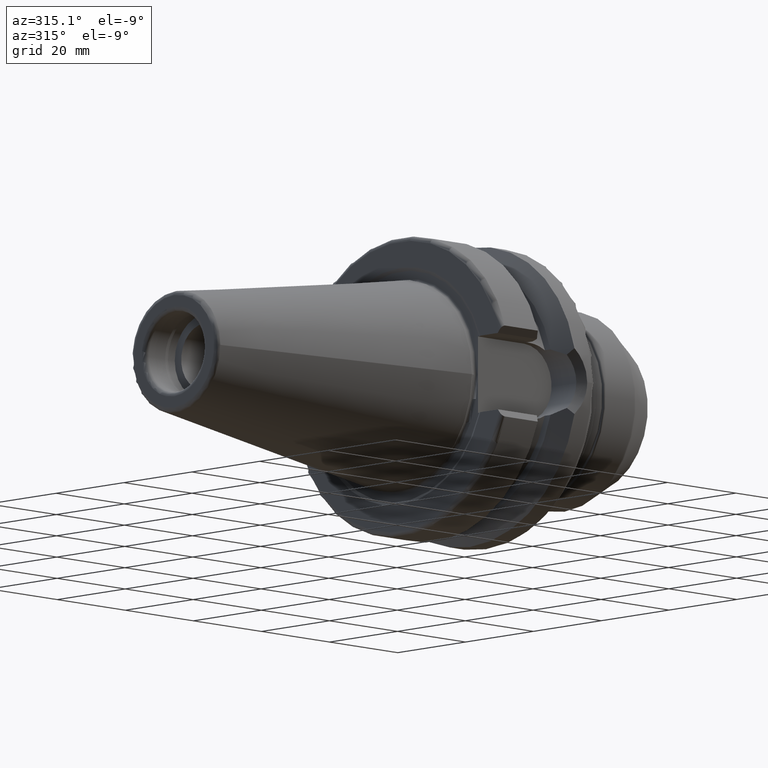
[diagram: clean part render]
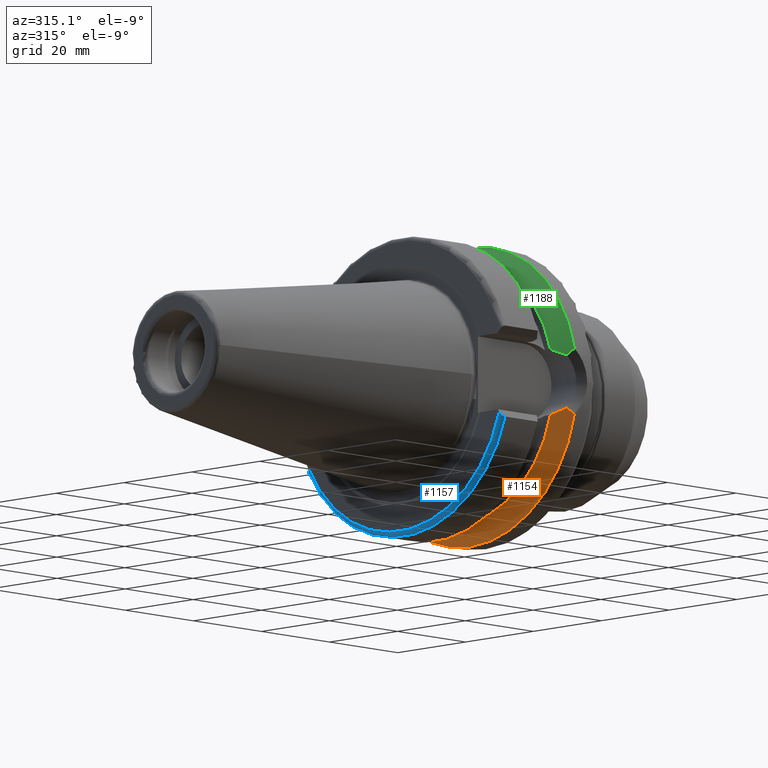
[diagram: same view with three faces highlighted in distinct colors, each labeled with its STEP entity id]
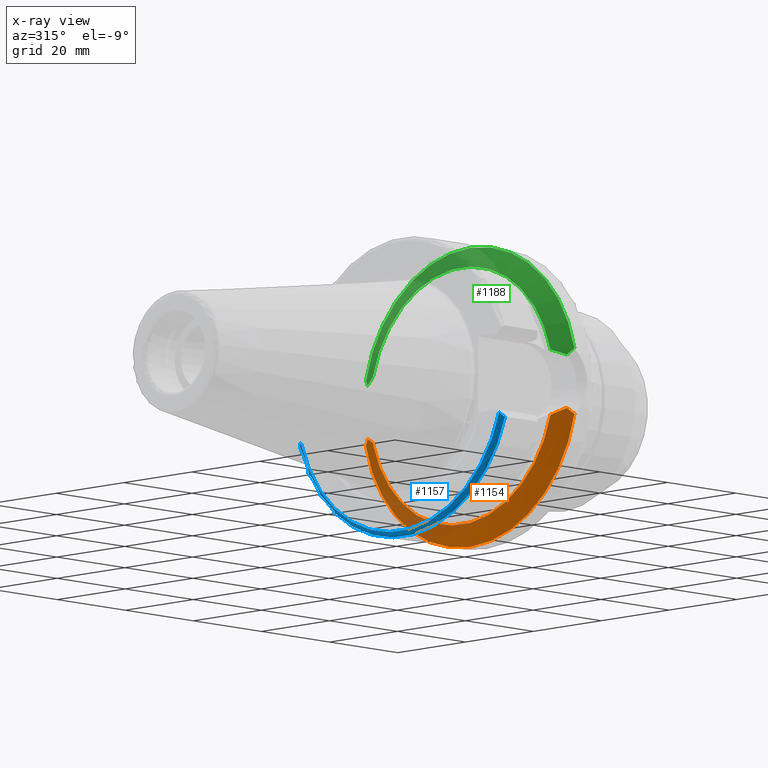
[diagram: x-ray of the same camera — body ghosted, the three highlighted faces saturated]
A machine part, auxiliary view with three faces highlighted in distinct colors.
The next image is the same camera in x-ray (body ghosted, the three faces saturated) — at least one of them is partly hidden behind the body in this view.
Their STEP definitions:

[orange] entity #1154 — the highlighted conical surface has half-angle 60.125 deg.
#27=B_SPLINE_CURVE_WITH_KNOTS('',3,(#1872,#1873,#1874,#1875,#1876,#1877,
#1878,#1879,#1880,#1881,#1882,#1883,#1884),.UNSPECIFIED.,.F.,.F.,(4,3,3,
3,4),(0.,0.0663857987262874,0.104853023511296,0.177953491129426,0.209498394876945),
 .UNSPECIFIED.);
#33=B_SPLINE_CURVE_WITH_KNOTS('',3,(#1944,#1945,#1946,#1947,#1948,#1949),
 .UNSPECIFIED.,.F.,.F.,(4,2,4),(3.3443816511031,3.62699288756974,3.70848737461385),
 .UNSPECIFIED.);
#34=B_SPLINE_CURVE_WITH_KNOTS('',3,(#1953,#1954,#1955,#1956,#1957,#1958),
 .UNSPECIFIED.,.F.,.F.,(4,2,4),(1.4642102789956,1.54570476603971,1.82831600250635),
 .UNSPECIFIED.);
#35=B_SPLINE_CURVE_WITH_KNOTS('',3,(#1959,#1960,#1961,#1962,#1963,#1964,
#1965,#1966,#1967,#1968,#1969,#1970,#1971),.UNSPECIFIED.,.F.,.F.,(4,3,3,
3,4),(1.38777878078145E-17,0.0731680095135469,0.104649820620959,0.171142802075839,
0.209508940919759),.UNSPECIFIED.);
#53=CONICAL_SURFACE('',#1285,29.2970358274569,1.04937921276159);
#131=FACE_OUTER_BOUND('',#207,.T.);
#207=EDGE_LOOP('',(#852,#853,#854,#855,#856,#857));
#420=CIRCLE('',#1282,31.5000000000001);
#423=CIRCLE('',#1286,27.0940716549138);
#492=VERTEX_POINT('',#1870);
#493=VERTEX_POINT('',#1871);
#499=VERTEX_POINT('',#1928);
#501=VERTEX_POINT('',#1943);
#502=VERTEX_POINT('',#1950);
#503=VERTEX_POINT('',#1952);
#621=EDGE_CURVE('',#492,#493,#27,.T.);
#628=EDGE_CURVE('',#493,#499,#420,.T.);
#632=EDGE_CURVE('',#492,#501,#33,.T.);
#633=EDGE_CURVE('',#501,#502,#423,.T.);
#634=EDGE_CURVE('',#502,#503,#34,.T.);
#635=EDGE_CURVE('',#499,#503,#35,.T.);
#852=ORIENTED_EDGE('',*,*,#621,.F.);
#853=ORIENTED_EDGE('',*,*,#632,.T.);
#854=ORIENTED_EDGE('',*,*,#633,.T.);
#855=ORIENTED_EDGE('',*,*,#634,.T.);
#856=ORIENTED_EDGE('',*,*,#635,.F.);
#857=ORIENTED_EDGE('',*,*,#628,.F.);
#1154=ADVANCED_FACE('',(#131),#53,.T.);
#1282=AXIS2_PLACEMENT_3D('',#1929,#1501,#1502);
#1285=AXIS2_PLACEMENT_3D('',#1942,#1507,#1508);
#1286=AXIS2_PLACEMENT_3D('',#1951,#1509,#1510);
#1501=DIRECTION('center_axis',(1.,0.,0.));
#1502=DIRECTION('ref_axis',(0.,0.,-1.));
#1507=DIRECTION('center_axis',(1.,0.,0.));
#1508=DIRECTION('ref_axis',(0.,1.,0.));
#1509=DIRECTION('center_axis',(1.,0.,0.));
#1510=DIRECTION('ref_axis',(0.,0.,-1.));
#1870=CARTESIAN_POINT('',(20.7197593187301,-29.382324732277,-5.61358863864523));
#1871=CARTESIAN_POINT('',(21.6309636926619,-30.7261128229805,-6.93945176433102));
#1872=CARTESIAN_POINT('Ctrl Pts',(20.7197657819788,-29.3823237299493,-5.61358132195236));
#1873=CARTESIAN_POINT('Ctrl Pts',(20.8148408821884,-29.5238838511283,-5.7546101488345));
#1874=CARTESIAN_POINT('Ctrl Pts',(20.9104055783237,-29.6657166596105,-5.89544203107064));
#1875=CARTESIAN_POINT('Ctrl Pts',(21.0063031067432,-29.8076037972815,-6.03588995803085));
#1876=CARTESIAN_POINT('Ctrl Pts',(21.0618708916131,-29.8898202430217,-6.11727245369445));
#1877=CARTESIAN_POINT('Ctrl Pts',(21.1175496497856,-29.9720546777218,-6.19852652970694));
#1878=CARTESIAN_POINT('Ctrl Pts',(21.1733023497016,-30.0542624823723,-6.27961994688687));
#1879=CARTESIAN_POINT('Ctrl Pts',(21.2792509450996,-30.2104845388214,-6.43372429805168));
#1880=CARTESIAN_POINT('Ctrl Pts',(21.3857145189625,-30.3669699337808,-6.5875976402581));
#1881=CARTESIAN_POINT('Ctrl Pts',(21.4925206651177,-30.5234882138239,-6.74104749484797));
#1882=CARTESIAN_POINT('Ctrl Pts',(21.5386105152909,-30.5910302452167,-6.80726541452524));
#1883=CARTESIAN_POINT('Ctrl Pts',(21.5847636249085,-30.6585782245638,-6.87340481119639));
#1884=CARTESIAN_POINT('Ctrl Pts',(21.6309636926619,-30.7261128229805,-6.93945176433104));
#1928=CARTESIAN_POINT('',(21.6309636926619,30.7261128229805,-6.93945176433102));
#1929=CARTESIAN_POINT('Origin',(21.6309636926619,0.,0.));
#1942=CARTESIAN_POINT('Origin',(20.3654818463309,0.,0.));
#1943=CARTESIAN_POINT('',(19.1,-26.201311395455,-6.89782574439221));
#1944=CARTESIAN_POINT('Ctrl Pts',(20.7197593187301,-29.382324732277,-5.61358863864523));
#1945=CARTESIAN_POINT('Ctrl Pts',(20.3012218741369,-28.558364647748,-6.04376984297407));
#1946=CARTESIAN_POINT('Ctrl Pts',(19.867744184216,-27.7064624084632,-6.39234949299032));
#1947=CARTESIAN_POINT('Ctrl Pts',(19.3406963650697,-26.6728819297428,-6.7486710865604));
#1948=CARTESIAN_POINT('Ctrl Pts',(19.2210929544554,-26.438473693351,-6.82497151762395));
#1949=CARTESIAN_POINT('Ctrl Pts',(19.1,-26.201311395455,-6.89782574439221));
#1950=CARTESIAN_POINT('',(19.1,26.201311395455,-6.89782574439221));
#1951=CARTESIAN_POINT('Origin',(19.1,0.,0.));
#1952=CARTESIAN_POINT('',(20.7197593187301,29.382324732277,-5.61358863864523));
#1953=CARTESIAN_POINT('Ctrl Pts',(19.1,26.201311395455,-6.89782574439221));
#1954=CARTESIAN_POINT('Ctrl Pts',(19.2210929544554,26.438473693351,-6.82497151762395));
#1955=CARTESIAN_POINT('Ctrl Pts',(19.3406963650697,26.6728819297427,-6.74867108656041));
#1956=CARTESIAN_POINT('Ctrl Pts',(19.8677441842159,27.7064624084632,-6.39234949299032));
#1957=CARTESIAN_POINT('Ctrl Pts',(20.3012218741369,28.558364647748,-6.04376984297407));
#1958=CARTESIAN_POINT('Ctrl Pts',(20.7197593187301,29.382324732277,-5.61358863864523));
#1959=CARTESIAN_POINT('Ctrl Pts',(21.6309636926618,30.7261128229805,-6.93945176433104));
#1960=CARTESIAN_POINT('Ctrl Pts',(21.5238086080159,30.5694750524797,-6.78626439474683));
#1961=CARTESIAN_POINT('Ctrl Pts',(21.4169091348659,30.4127664111858,-6.63257916591966));
#1962=CARTESIAN_POINT('Ctrl Pts',(21.310456536906,30.2562241217923,-6.47857776697082));
#1963=CARTESIAN_POINT('Ctrl Pts',(21.2646534516076,30.1888690738994,-6.41231598146896));
#1964=CARTESIAN_POINT('Ctrl Pts',(21.2189325585309,30.1215446447243,-6.34599600137116));
#1965=CARTESIAN_POINT('Ctrl Pts',(21.1733066768474,30.0542689338646,-6.27963381498107));
#1966=CARTESIAN_POINT('Ctrl Pts',(21.0769398924116,29.9121753745297,-6.13946971788114));
#1967=CARTESIAN_POINT('Ctrl Pts',(20.9807965697314,29.7700032858785,-5.99882548575242));
#1968=CARTESIAN_POINT('Ctrl Pts',(20.8850589555166,29.6279802338881,-5.85787328488443));
#1969=CARTESIAN_POINT('Ctrl Pts',(20.8298188005531,29.5460335981308,-5.77654452520884));
#1970=CARTESIAN_POINT('Ctrl Pts',(20.7747129164645,29.4641363179111,-5.69511373443865));
#1971=CARTESIAN_POINT('Ctrl Pts',(20.7197698702457,29.3823300093151,-5.61361800937777));

[blue] entity #1157 — the highlighted toroidal blend (fillet) surface has major radius 30.5 mm and minor (blend) radius 1 mm.
#36=B_SPLINE_CURVE_WITH_KNOTS('',3,(#1975,#1976,#1977,#1978,#1979,#1980,
#1981,#1982,#1983,#1984),.UNSPECIFIED.,.F.,.F.,(4,2,2,2,4),(-0.166231853210586,
-0.116949965881853,-0.0730574737661982,-0.0345693522183143,0.),
 .UNSPECIFIED.);
#37=B_SPLINE_CURVE_WITH_KNOTS('',3,(#2003,#2004,#2005,#2006,#2007,#2008,
#2009,#2010,#2011,#2012),.UNSPECIFIED.,.F.,.F.,(4,2,2,2,4),(0.,0.0345693522183141,
0.0730574737661981,0.116949965881853,0.166231853210586),.UNSPECIFIED.);
#102=TOROIDAL_SURFACE('',#1291,30.5,1.00000000000001);
#134=FACE_OUTER_BOUND('',#210,.T.);
#210=EDGE_LOOP('',(#867,#868,#869,#870));
#424=CIRCLE('',#1289,31.5);
#426=CIRCLE('',#1292,30.5);
#504=VERTEX_POINT('',#1973);
#505=VERTEX_POINT('',#1974);
#509=VERTEX_POINT('',#1995);
#511=VERTEX_POINT('',#2001);
#636=EDGE_CURVE('',#504,#505,#36,.T.);
#641=EDGE_CURVE('',#505,#509,#424,.T.);
#644=EDGE_CURVE('',#504,#511,#426,.T.);
#645=EDGE_CURVE('',#509,#511,#37,.T.);
#867=ORIENTED_EDGE('',*,*,#636,.F.);
#868=ORIENTED_EDGE('',*,*,#644,.T.);
#869=ORIENTED_EDGE('',*,*,#645,.F.);
#870=ORIENTED_EDGE('',*,*,#641,.F.);
#1157=ADVANCED_FACE('',(#134),#102,.T.);
#1289=AXIS2_PLACEMENT_3D('',#1996,#1518,#1519);
#1291=AXIS2_PLACEMENT_3D('',#2000,#1523,#1524);
#1292=AXIS2_PLACEMENT_3D('',#2002,#1525,#1526);
#1518=DIRECTION('center_axis',(1.,0.,0.));
#1519=DIRECTION('ref_axis',(0.,0.,-1.));
#1523=DIRECTION('center_axis',(1.,0.,0.));
#1524=DIRECTION('ref_axis',(0.,0.,-1.));
#1525=DIRECTION('center_axis',(1.,0.,0.));
#1526=DIRECTION('ref_axis',(0.,0.,-1.));
#1973=CARTESIAN_POINT('',(0.999999999999992,-29.2635810473993,-8.59609354778619));
#1974=CARTESIAN_POINT('',(1.99999999999999,-30.0059801089944,-9.58598757033586));
#1975=CARTESIAN_POINT('Ctrl Pts',(0.999999999999988,-29.2635810473993,-8.59609354778619));
#1976=CARTESIAN_POINT('Ctrl Pts',(0.999999999999987,-29.3621429990468,-8.72751328123389));
#1977=CARTESIAN_POINT('Ctrl Pts',(1.03265244131678,-29.4787835094864,-8.88303845636436));
#1978=CARTESIAN_POINT('Ctrl Pts',(1.13925367477065,-29.6538085089851,-9.11641186665444));
#1979=CARTESIAN_POINT('Ctrl Pts',(1.22617276763936,-29.7453336353869,-9.23844889528912));
#1980=CARTESIAN_POINT('Ctrl Pts',(1.40782357323146,-29.868892414161,-9.40319869478268));
#1981=CARTESIAN_POINT('Ctrl Pts',(1.52925579784497,-29.9256717286954,-9.47890663538983));
#1982=CARTESIAN_POINT('Ctrl Pts',(1.7500257349215,-29.9873423518317,-9.56113650927783));
#1983=CARTESIAN_POINT('Ctrl Pts',(1.88476882593895,-30.0059801089944,-9.58598757033584));
#1984=CARTESIAN_POINT('Ctrl Pts',(1.99999999999999,-30.0059801089944,-9.58598757033584));
#1995=CARTESIAN_POINT('',(1.99999999999999,30.0059801089944,-9.58598757033586));
#1996=CARTESIAN_POINT('Origin',(1.99999999999999,0.,0.));
#2000=CARTESIAN_POINT('Origin',(1.99999999999999,0.,0.));
#2001=CARTESIAN_POINT('',(0.999999999999992,29.2635810473993,-8.59609354778619));
#2002=CARTESIAN_POINT('Origin',(0.999999999999992,0.,0.));
#2003=CARTESIAN_POINT('Ctrl Pts',(1.99999999999999,30.0059801089944,-9.58598757033584));
#2004=CARTESIAN_POINT('Ctrl Pts',(1.88476882593895,30.0059801089944,-9.58598757033584));
#2005=CARTESIAN_POINT('Ctrl Pts',(1.7500257349215,29.9873423518317,-9.56113650927783));
#2006=CARTESIAN_POINT('Ctrl Pts',(1.52925579784497,29.9256717286954,-9.47890663538983));
#2007=CARTESIAN_POINT('Ctrl Pts',(1.40782357323147,29.868892414161,-9.40319869478268));
#2008=CARTESIAN_POINT('Ctrl Pts',(1.22617276763937,29.7453336353869,-9.23844889528912));
#2009=CARTESIAN_POINT('Ctrl Pts',(1.13925367477065,29.6538085089851,-9.11641186665444));
#2010=CARTESIAN_POINT('Ctrl Pts',(1.03265244131678,29.4787835094864,-8.88303845636436));
#2011=CARTESIAN_POINT('Ctrl Pts',(0.999999999999988,29.3621429990468,-8.72751328123389));
#2012=CARTESIAN_POINT('Ctrl Pts',(0.999999999999988,29.2635810473993,-8.59609354778619));

[green] entity #1188 — the highlighted conical surface has half-angle 60.125 deg.
#30=B_SPLINE_CURVE_WITH_KNOTS('',3,(#1901,#1902,#1903,#1904,#1905,#1906,
#1907,#1908,#1909,#1910,#1911,#1912,#1913),.UNSPECIFIED.,.F.,.F.,(4,3,3,
3,4),(0.,0.0731506810736418,0.104649820621099,0.17112209757583,0.209508940919131),
 .UNSPECIFIED.);
#40=B_SPLINE_CURVE_WITH_KNOTS('',3,(#2107,#2108,#2109,#2110,#2111,#2112,
#2113,#2114,#2115,#2116,#2117,#2118,#2119),.UNSPECIFIED.,.F.,.F.,(4,3,3,
3,4),(0.,0.066453158711785,0.104853023510292,0.177983430078857,0.209498394873819),
 .UNSPECIFIED.);
#42=B_SPLINE_CURVE_WITH_KNOTS('',3,(#2209,#2210,#2211,#2212,#2213,#2214),
 .UNSPECIFIED.,.F.,.F.,(4,2,4),(1.4642102789956,1.54570476603971,1.82831600250635),
 .UNSPECIFIED.);
#47=B_SPLINE_CURVE_WITH_KNOTS('',3,(#2302,#2303,#2304,#2305,#2306,#2307),
 .UNSPECIFIED.,.F.,.F.,(4,2,4),(3.3443816511031,3.62699288756974,3.70848737461385),
 .UNSPECIFIED.);
#60=CONICAL_SURFACE('',#1343,29.2970358274569,1.04937921276159);
#165=FACE_OUTER_BOUND('',#241,.T.);
#241=EDGE_LOOP('',(#1044,#1045,#1046,#1047,#1048,#1049));
#421=CIRCLE('',#1283,31.5000000000001);
#448=CIRCLE('',#1344,27.0940716549138);
#495=VERTEX_POINT('',#1892);
#496=VERTEX_POINT('',#1900);
#500=VERTEX_POINT('',#1930);
#526=VERTEX_POINT('',#2106);
#549=VERTEX_POINT('',#2208);
#565=VERTEX_POINT('',#2300);
#624=EDGE_CURVE('',#495,#496,#30,.T.);
#630=EDGE_CURVE('',#500,#495,#421,.T.);
#664=EDGE_CURVE('',#526,#500,#40,.T.);
#698=EDGE_CURVE('',#549,#496,#42,.T.);
#731=EDGE_CURVE('',#526,#565,#47,.T.);
#732=EDGE_CURVE('',#565,#549,#448,.T.);
#1044=ORIENTED_EDGE('',*,*,#624,.F.);
#1045=ORIENTED_EDGE('',*,*,#630,.F.);
#1046=ORIENTED_EDGE('',*,*,#664,.F.);
#1047=ORIENTED_EDGE('',*,*,#731,.T.);
#1048=ORIENTED_EDGE('',*,*,#732,.T.);
#1049=ORIENTED_EDGE('',*,*,#698,.T.);
#1188=ADVANCED_FACE('',(#165),#60,.T.);
#1283=AXIS2_PLACEMENT_3D('',#1940,#1503,#1504);
#1343=AXIS2_PLACEMENT_3D('',#2308,#1671,#1672);
#1344=AXIS2_PLACEMENT_3D('',#2309,#1673,#1674);
#1503=DIRECTION('center_axis',(1.,0.,0.));
#1504=DIRECTION('ref_axis',(0.,0.,-1.));
#1671=DIRECTION('center_axis',(1.,0.,0.));
#1672=DIRECTION('ref_axis',(0.,1.,0.));
#1673=DIRECTION('center_axis',(1.,0.,0.));
#1674=DIRECTION('ref_axis',(0.,0.,-1.));
#1892=CARTESIAN_POINT('',(21.6309636926619,-30.7261128229805,6.93945176433102));
#1900=CARTESIAN_POINT('',(20.7197593187301,-29.382324732277,5.61358863864523));
#1901=CARTESIAN_POINT('Ctrl Pts',(21.6309636926619,-30.7261128229805,6.93945176433103));
#1902=CARTESIAN_POINT('Ctrl Pts',(21.5238339856428,-30.5695121491318,6.78630067423762));
#1903=CARTESIAN_POINT('Ctrl Pts',(21.4169592784421,-30.4128404199052,6.63265120293111));
#1904=CARTESIAN_POINT('Ctrl Pts',(21.3105305033278,-30.2563346083301,6.47868470749077));
#1905=CARTESIAN_POINT('Ctrl Pts',(21.2647016089144,-30.1889422296613,6.41238577418863));
#1906=CARTESIAN_POINT('Ctrl Pts',(21.2189548618225,-30.1215804376254,6.34602839655281));
#1907=CARTESIAN_POINT('Ctrl Pts',(21.1733030871153,-30.0542673557316,6.27962857959426));
#1908=CARTESIAN_POINT('Ctrl Pts',(21.0769646646882,-29.9122173224101,6.13950579890808));
#1909=CARTESIAN_POINT('Ctrl Pts',(20.9808489178349,-29.7700885299286,5.99890233767342));
#1910=CARTESIAN_POINT('Ctrl Pts',(20.8851377800934,-29.6281082801534,5.85799018832492));
#1911=CARTESIAN_POINT('Ctrl Pts',(20.8298658890284,-29.5461166009804,5.77661532274159));
#1912=CARTESIAN_POINT('Ctrl Pts',(20.7747281328589,-29.4641741974733,5.69513801393111));
#1913=CARTESIAN_POINT('Ctrl Pts',(20.7197531070639,-29.3823227488288,5.6135954544323));
#1930=CARTESIAN_POINT('',(21.6309636926619,30.7261128229805,6.93945176433102));
#1940=CARTESIAN_POINT('Origin',(21.6309636926619,0.,0.));
#2106=CARTESIAN_POINT('',(20.7197593187301,29.382324732277,5.61358863864523));
#2107=CARTESIAN_POINT('Ctrl Pts',(20.7197515894297,29.3823222023351,5.61359762229939));
#2108=CARTESIAN_POINT('Ctrl Pts',(20.8149264355491,29.5240261146061,5.75476612102477));
#2109=CARTESIAN_POINT('Ctrl Pts',(20.9105912690111,29.6660033681186,5.89573769514358));
#2110=CARTESIAN_POINT('Ctrl Pts',(21.0065888437666,29.8080348169476,6.03632495637328));
#2111=CARTESIAN_POINT('Ctrl Pts',(21.0620609080454,29.8901074909618,6.11756310860358));
#2112=CARTESIAN_POINT('Ctrl Pts',(21.1176433000706,29.972198010001,6.19867342831795));
#2113=CARTESIAN_POINT('Ctrl Pts',(21.1732991947734,30.0542619764308,6.27962385104281));
#2114=CARTESIAN_POINT('Ctrl Pts',(21.2792927504514,30.2105482358,6.43378942836527));
#2115=CARTESIAN_POINT('Ctrl Pts',(21.3858010607312,30.3670979926274,6.58772453026809));
#2116=CARTESIAN_POINT('Ctrl Pts',(21.4926516371797,30.5236804762112,6.74123636577551));
#2117=CARTESIAN_POINT('Ctrl Pts',(21.538698039943,30.5911584472658,6.80739106555952));
#2118=CARTESIAN_POINT('Ctrl Pts',(21.5848074729308,30.6586423209757,6.87346749569907));
#2119=CARTESIAN_POINT('Ctrl Pts',(21.6309636926619,30.7261128229805,6.93945176433103));
#2208=CARTESIAN_POINT('',(19.1,-26.201311395455,6.89782574439221));
#2209=CARTESIAN_POINT('Ctrl Pts',(19.1,-26.201311395455,6.89782574439221));
#2210=CARTESIAN_POINT('Ctrl Pts',(19.2210929544554,-26.438473693351,6.82497151762395));
#2211=CARTESIAN_POINT('Ctrl Pts',(19.3406963650697,-26.6728819297428,6.74867108656041));
#2212=CARTESIAN_POINT('Ctrl Pts',(19.867744184216,-27.7064624084632,6.39234949299032));
#2213=CARTESIAN_POINT('Ctrl Pts',(20.3012218741369,-28.558364647748,6.04376984297407));
#2214=CARTESIAN_POINT('Ctrl Pts',(20.7197593187301,-29.382324732277,5.61358863864523));
#2300=CARTESIAN_POINT('',(19.1,26.201311395455,6.89782574439221));
#2302=CARTESIAN_POINT('Ctrl Pts',(20.7197593187301,29.382324732277,5.61358863864523));
#2303=CARTESIAN_POINT('Ctrl Pts',(20.3012218741369,28.558364647748,6.04376984297407));
#2304=CARTESIAN_POINT('Ctrl Pts',(19.867744184216,27.7064624084632,6.39234949299032));
#2305=CARTESIAN_POINT('Ctrl Pts',(19.3406963650697,26.6728819297428,6.74867108656041));
#2306=CARTESIAN_POINT('Ctrl Pts',(19.2210929544554,26.438473693351,6.82497151762395));
#2307=CARTESIAN_POINT('Ctrl Pts',(19.1,26.201311395455,6.89782574439221));
#2308=CARTESIAN_POINT('Origin',(20.3654818463309,0.,0.));
#2309=CARTESIAN_POINT('Origin',(19.1,0.,0.));